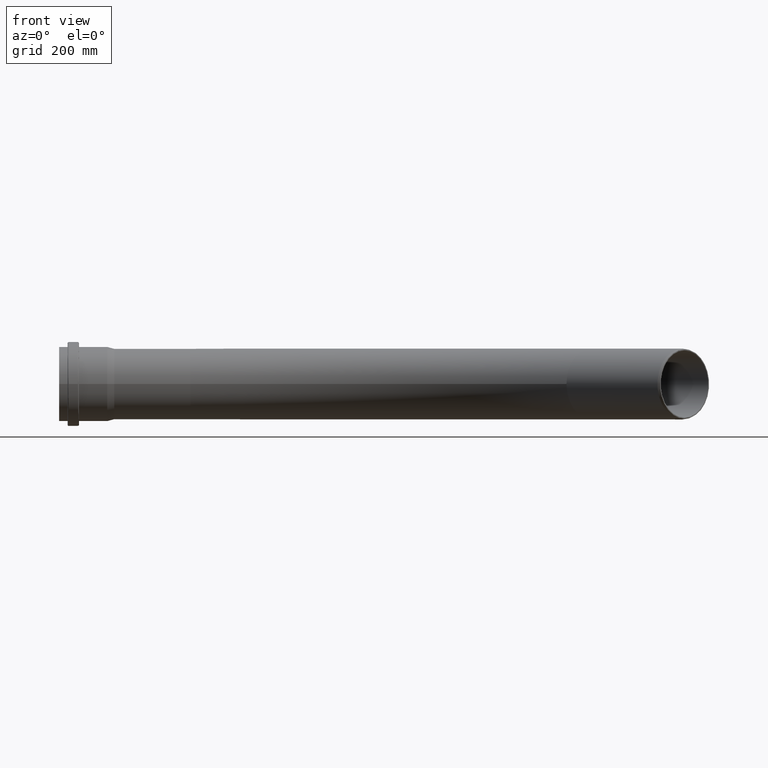
[diagram: clean part render]
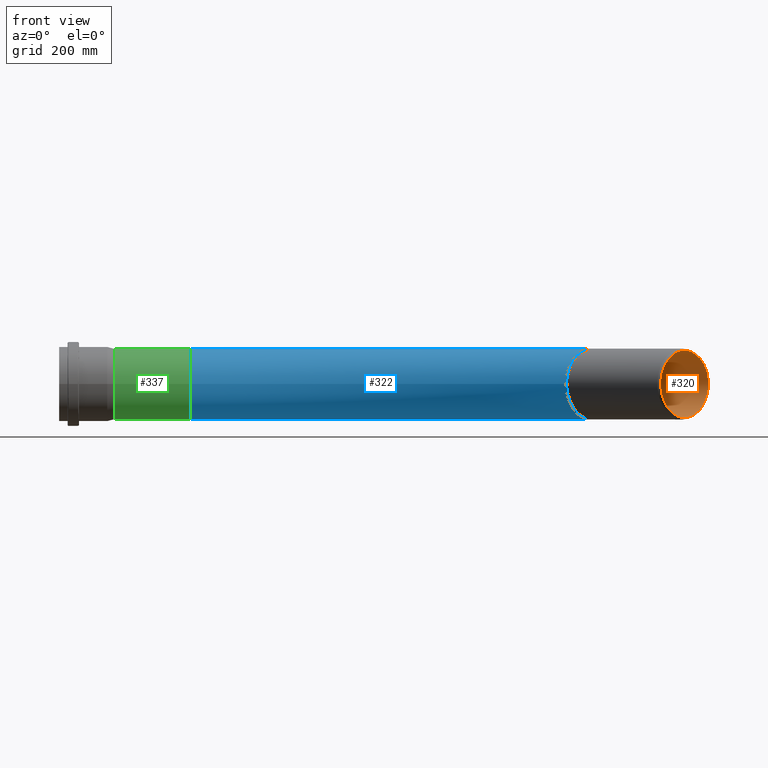
[diagram: same view with three faces highlighted in distinct colors, each labeled with its STEP entity id]
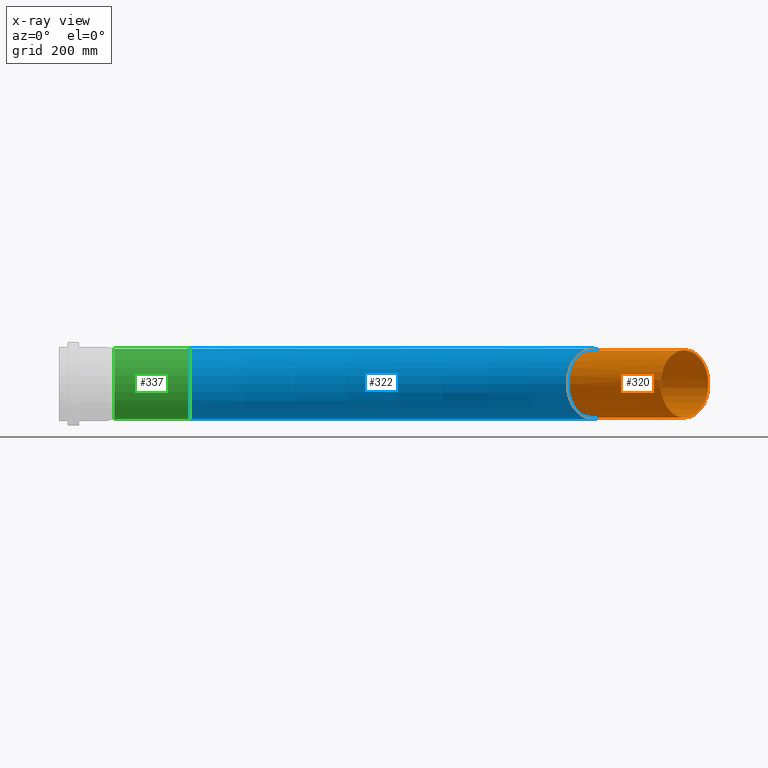
[diagram: x-ray of the same camera — body ghosted, the three highlighted faces saturated]
A machine part, front view with three faces highlighted in distinct colors.
The next image is the same camera in x-ray (body ghosted, the three faces saturated) — at least one of them is partly hidden behind the body in this view.
Their STEP definitions:

[orange] entity #320 — the highlighted cylindrical surface (bore or boss wall) has radius 59.4 mm, axis along (0.7071, -0.7071, 0).
#32=CYLINDRICAL_SURFACE('',#372,59.4);
#44=FACE_OUTER_BOUND('',#68,.T.);
#68=EDGE_LOOP('',(#237,#238,#239,#240,#241));
#95=LINE('',#565,#108);
#108=VECTOR('',#444,59.4);
#124=CIRCLE('',#371,59.4);
#125=CIRCLE('',#373,59.4);
#126=CIRCLE('',#374,59.4);
#156=VERTEX_POINT('',#559);
#157=VERTEX_POINT('',#562);
#158=VERTEX_POINT('',#563);
#186=EDGE_CURVE('',#156,#156,#124,.T.);
#187=EDGE_CURVE('',#157,#158,#125,.T.);
#188=EDGE_CURVE('',#157,#156,#95,.T.);
#189=EDGE_CURVE('',#158,#157,#126,.T.);
#237=ORIENTED_EDGE('',*,*,#187,.F.);
#238=ORIENTED_EDGE('',*,*,#188,.T.);
#239=ORIENTED_EDGE('',*,*,#186,.F.);
#240=ORIENTED_EDGE('',*,*,#188,.F.);
#241=ORIENTED_EDGE('',*,*,#189,.F.);
#320=ADVANCED_FACE('',(#44),#32,.F.);
#371=AXIS2_PLACEMENT_3D('',#560,#438,#439);
#372=AXIS2_PLACEMENT_3D('',#561,#440,#441);
#373=AXIS2_PLACEMENT_3D('',#564,#442,#443);
#374=AXIS2_PLACEMENT_3D('',#566,#445,#446);
#438=DIRECTION('center_axis',(-0.707106781186548,0.707106781186547,0.));
#439=DIRECTION('ref_axis',(0.,0.,1.));
#440=DIRECTION('center_axis',(0.707106781186548,-0.707106781186547,0.));
#441=DIRECTION('ref_axis',(0.,0.,1.));
#442=DIRECTION('center_axis',(0.707106781186548,-0.707106781186547,0.));
#443=DIRECTION('ref_axis',(0.,0.,1.));
#444=DIRECTION('',(0.707106781186548,-0.707106781186547,0.));
#445=DIRECTION('center_axis',(0.707106781186548,-0.707106781186547,0.));
#446=DIRECTION('ref_axis',(0.,0.,1.));
#559=CARTESIAN_POINT('',(931.430554421827,-456.941992048731,-59.4));
#560=CARTESIAN_POINT('Origin',(931.430554421827,-456.941992048731,0.));
#561=CARTESIAN_POINT('Origin',(767.381781186548,-292.893218813452,0.));
#562=CARTESIAN_POINT('',(767.381781186548,-292.893218813452,-59.4));
#563=CARTESIAN_POINT('',(725.379638384067,-334.895361615933,7.27440198693528E-15));
#564=CARTESIAN_POINT('Origin',(767.381781186548,-292.893218813452,0.));
#565=CARTESIAN_POINT('',(767.381781186548,-292.893218813452,-59.4));
#566=CARTESIAN_POINT('Origin',(767.381781186548,-292.893218813452,0.));

[blue] entity #322 — the highlighted toroidal blend (fillet) surface has major radius 1000 mm and minor (blend) radius 62.5 mm.
#16=TOROIDAL_SURFACE('',#378,1000.,62.5);
#46=FACE_OUTER_BOUND('',#70,.T.);
#70=EDGE_LOOP('',(#247,#248,#249,#250,#251));
#122=CIRCLE('',#368,62.5);
#123=CIRCLE('',#369,62.5);
#129=CIRCLE('',#379,937.5);
#130=CIRCLE('',#380,62.5);
#154=VERTEX_POINT('',#553);
#155=VERTEX_POINT('',#555);
#160=VERTEX_POINT('',#572);
#184=EDGE_CURVE('',#154,#155,#122,.T.);
#185=EDGE_CURVE('',#155,#154,#123,.T.);
#192=EDGE_CURVE('',#155,#160,#129,.T.);
#193=EDGE_CURVE('',#160,#160,#130,.T.);
#247=ORIENTED_EDGE('',*,*,#185,.F.);
#248=ORIENTED_EDGE('',*,*,#192,.T.);
#249=ORIENTED_EDGE('',*,*,#193,.T.);
#250=ORIENTED_EDGE('',*,*,#192,.F.);
#251=ORIENTED_EDGE('',*,*,#184,.F.);
#322=ADVANCED_FACE('',(#46),#16,.T.);
#368=AXIS2_PLACEMENT_3D('',#556,#432,#433);
#369=AXIS2_PLACEMENT_3D('',#557,#434,#435);
#378=AXIS2_PLACEMENT_3D('',#571,#453,#454);
#379=AXIS2_PLACEMENT_3D('',#573,#455,#456);
#380=AXIS2_PLACEMENT_3D('',#574,#457,#458);
#432=DIRECTION('center_axis',(0.707106781186548,-0.707106781186547,0.));
#433=DIRECTION('ref_axis',(0.,0.,-1.));
#434=DIRECTION('center_axis',(0.707106781186548,-0.707106781186547,0.));
#435=DIRECTION('ref_axis',(0.,0.,-1.));
#453=DIRECTION('center_axis',(0.,0.,-1.));
#454=DIRECTION('ref_axis',(-1.,0.,0.));
#455=DIRECTION('center_axis',(0.,0.,1.));
#456=DIRECTION('ref_axis',(-1.,0.,0.));
#457=DIRECTION('center_axis',(1.,0.,0.));
#458=DIRECTION('ref_axis',(0.,0.,-1.));
#553=CARTESIAN_POINT('',(767.381781186548,-292.893218813452,62.5));
#555=CARTESIAN_POINT('',(723.187607362388,-337.087392637612,7.65404249467096E-15));
#556=CARTESIAN_POINT('Origin',(767.381781186548,-292.893218813452,0.));
#557=CARTESIAN_POINT('Origin',(767.381781186548,-292.893218813452,0.));
#571=CARTESIAN_POINT('Origin',(60.2750000000002,-1000.,0.));
#572=CARTESIAN_POINT('',(60.275,-62.5,7.65404249467096E-15));
#573=CARTESIAN_POINT('Origin',(60.2750000000002,-1000.,7.65404249467096E-15));
#574=CARTESIAN_POINT('Origin',(60.275,0.,0.));

[green] entity #337 — the highlighted cylindrical surface (bore or boss wall) has radius 62.5 mm, axis along (1, 0, 0).
#39=CYLINDRICAL_SURFACE('',#414,62.5);
#61=FACE_OUTER_BOUND('',#89,.T.);
#89=EDGE_LOOP('',(#304,#305,#306,#307));
#104=LINE('',#634,#117);
#117=VECTOR('',#535,62.5);
#130=CIRCLE('',#380,62.5);
#149=CIRCLE('',#413,62.5);
#160=VERTEX_POINT('',#572);
#177=VERTEX_POINT('',#630);
#193=EDGE_CURVE('',#160,#160,#130,.T.);
#219=EDGE_CURVE('',#177,#177,#149,.T.);
#221=EDGE_CURVE('',#160,#177,#104,.T.);
#304=ORIENTED_EDGE('',*,*,#193,.F.);
#305=ORIENTED_EDGE('',*,*,#221,.T.);
#306=ORIENTED_EDGE('',*,*,#219,.T.);
#307=ORIENTED_EDGE('',*,*,#221,.F.);
#337=ADVANCED_FACE('',(#61),#39,.T.);
#380=AXIS2_PLACEMENT_3D('',#574,#457,#458);
#413=AXIS2_PLACEMENT_3D('',#631,#530,#531);
#414=AXIS2_PLACEMENT_3D('',#633,#533,#534);
#457=DIRECTION('center_axis',(1.,0.,0.));
#458=DIRECTION('ref_axis',(0.,0.,-1.));
#530=DIRECTION('center_axis',(1.,0.,0.));
#531=DIRECTION('ref_axis',(0.,0.,-1.));
#533=DIRECTION('center_axis',(1.,0.,0.));
#534=DIRECTION('ref_axis',(0.,1.,0.));
#535=DIRECTION('',(-1.,0.,0.));
#572=CARTESIAN_POINT('',(60.275,-62.5,7.65404249467096E-15));
#574=CARTESIAN_POINT('Origin',(60.275,0.,0.));
#630=CARTESIAN_POINT('',(-74.4092323350227,-62.5,-7.65404249467096E-15));
#631=CARTESIAN_POINT('Origin',(-74.4092323350227,0.,0.));
#633=CARTESIAN_POINT('Origin',(-7.06711616751134,0.,0.));
#634=CARTESIAN_POINT('',(-7.06711616751134,-62.5,-7.65404249467096E-15));